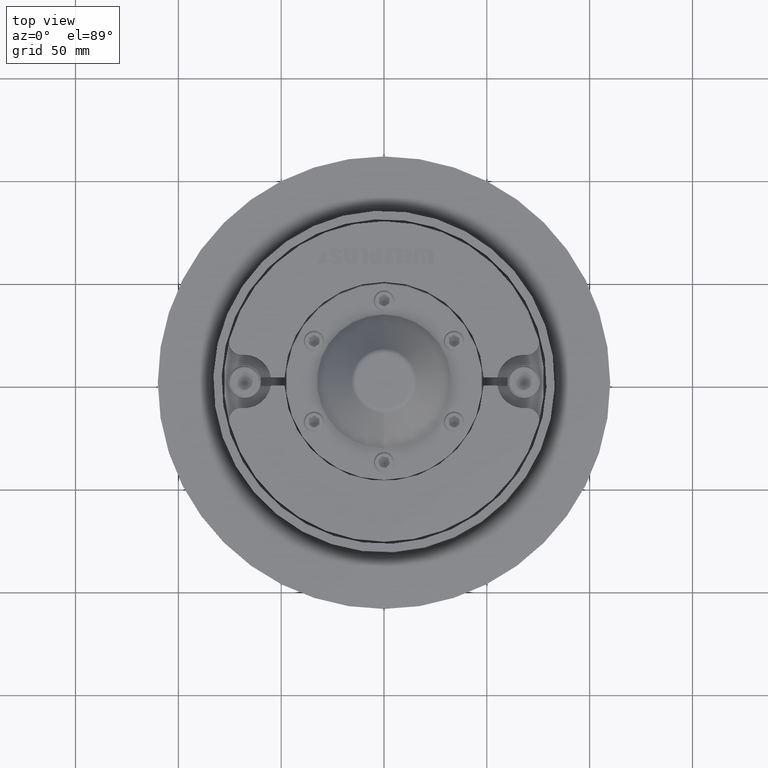
[diagram: clean part render]
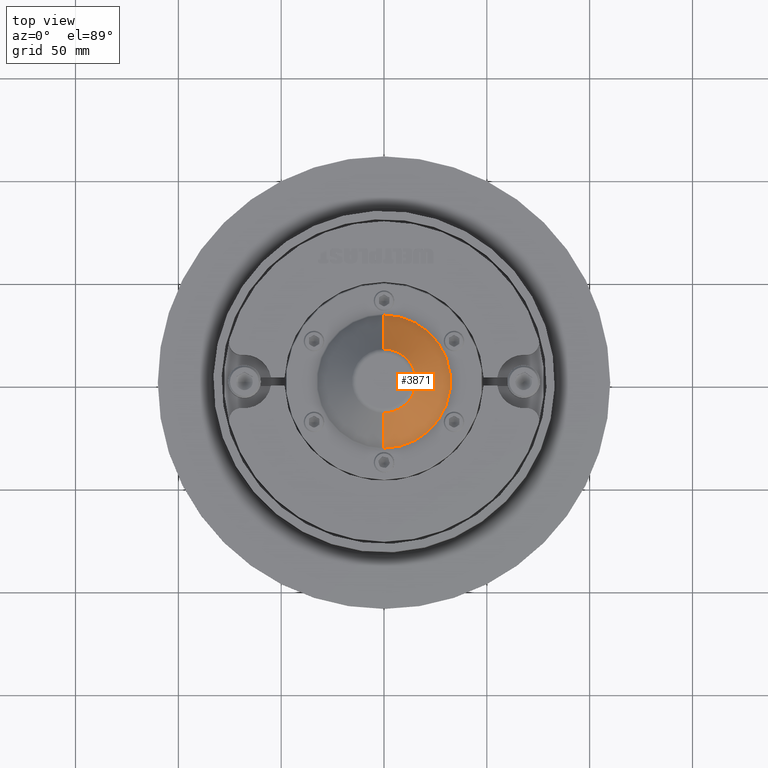
[diagram: same view with one face highlighted and labeled with its STEP entity id]
A machine part, top view. The second image highlights one B-rep face of the part: STEP entity #3871.
In plain terms, the highlighted conical surface has half-angle 45 deg.
Its self-contained STEP definition (entity closure, byte-faithful):
#3871 = ADVANCED_FACE ( 'NONE', ( #48618 ), #10867, .T. ) ;
#7131 = AXIS2_PLACEMENT_3D ( 'NONE', #46221, #19021, #50808 ) ;
#8106 = VERTEX_POINT ( 'NONE', #33176 ) ;
#8955 = LINE ( 'NONE', #52856, #55916 ) ;
#9525 = CIRCLE ( 'NONE', #7131, 32.36250678118655344 ) ;
#9891 = CARTESIAN_POINT ( 'NONE',  ( -2.277714244304297243E-06, -9.727706781185487372, 0.0000000000000000000 ) ) ;
#10092 = DIRECTION ( 'NONE',  ( -2.052230808033235889E-17, -1.000000000000000000, -0.0000000000000000000 ) ) ;
#10683 = VERTEX_POINT ( 'NONE', #33980 ) ;
#10867 = CONICAL_SURFACE ( 'NONE', #34868, 32.36250678118655344, 0.7853981633974480570 ) ;
#13302 = LINE ( 'NONE', #45023, #35998 ) ;
#17888 = CARTESIAN_POINT ( 'NONE',  ( -2.277714243958939041E-06, 7.100720343560696257, 0.0000000000000000000 ) ) ;
#17938 = ORIENTED_EDGE ( 'NONE', *, *, #36885, .T. ) ;
#18710 = ORIENTED_EDGE ( 'NONE', *, *, #53856, .T. ) ;
#18735 = AXIS2_PLACEMENT_3D ( 'NONE', #17888, #49674, #22451 ) ;
#19021 = DIRECTION ( 'NONE',  ( -2.052230808033235889E-17, -1.000000000000000000, -0.0000000000000000000 ) ) ;
#21057 = ORIENTED_EDGE ( 'NONE', *, *, #55711, .F. ) ;
#22451 = DIRECTION ( 'NONE',  ( 1.000000000000000000, 0.0000000000000000000, 0.0000000000000000000 ) ) ;
#25493 = ORIENTED_EDGE ( 'NONE', *, *, #46395, .F. ) ;
#25614 = DIRECTION ( 'NONE',  ( -0.7071067811865473507, -0.7071067811865477948, 8.659560562354931626E-17 ) ) ;
#29659 = CARTESIAN_POINT ( 'NONE',  ( 32.36250450347230867, -9.727706781185487372, 0.0000000000000000000 ) ) ;
#31703 = VERTEX_POINT ( 'NONE', #34081 ) ;
#33176 = CARTESIAN_POINT ( 'NONE',  ( -32.36250905890079821, -9.727706781185487372, 4.006561837008236962E-15 ) ) ;
#33980 = CARTESIAN_POINT ( 'NONE',  ( -15.53408193415462080, 7.100720343560696257, 1.902376092895972157E-15 ) ) ;
#34081 = CARTESIAN_POINT ( 'NONE',  ( 15.53407737872613303, 7.100720343560696257, 0.0000000000000000000 ) ) ;
#34868 = AXIS2_PLACEMENT_3D ( 'NONE', #9891, #10092, #37100 ) ;
#35998 = VECTOR ( 'NONE', #49587, 999.9999999999998863 ) ;
#36885 = EDGE_CURVE ( 'NONE', #31703, #10683, #52874, .T. ) ;
#37100 = DIRECTION ( 'NONE',  ( 1.000000000000000000, 0.0000000000000000000, 0.0000000000000000000 ) ) ;
#45023 = CARTESIAN_POINT ( 'NONE',  ( 32.36250450347230867, -9.727706781185487372, 0.0000000000000000000 ) ) ;
#46221 = CARTESIAN_POINT ( 'NONE',  ( -2.277714244304297243E-06, -9.727706781185487372, 0.0000000000000000000 ) ) ;
#46395 = EDGE_CURVE ( 'NONE', #31703, #53505, #13302, .T. ) ;
#48618 = FACE_OUTER_BOUND ( 'NONE', #49442, .T. ) ;
#49442 = EDGE_LOOP ( 'NONE', ( #17938, #18710, #21057, #25493 ) ) ;
#49587 = DIRECTION ( 'NONE',  ( 0.7071067811865473507, -0.7071067811865477948, 0.0000000000000000000 ) ) ;
#49674 = DIRECTION ( 'NONE',  ( -2.052230808033235889E-17, -1.000000000000000000, -0.0000000000000000000 ) ) ;
#50808 = DIRECTION ( 'NONE',  ( 1.000000000000000000, 0.0000000000000000000, 0.0000000000000000000 ) ) ;
#52856 = CARTESIAN_POINT ( 'NONE',  ( -32.36250905890079821, -9.727706781185487372, 3.963264034196462828E-15 ) ) ;
#52874 = CIRCLE ( 'NONE', #18735, 15.53407965644037780 ) ;
#53505 = VERTEX_POINT ( 'NONE', #29659 ) ;
#53856 = EDGE_CURVE ( 'NONE', #10683, #8106, #8955, .T. ) ;
#55711 = EDGE_CURVE ( 'NONE', #53505, #8106, #9525, .T. ) ;
#55916 = VECTOR ( 'NONE', #25614, 999.9999999999998863 ) ;